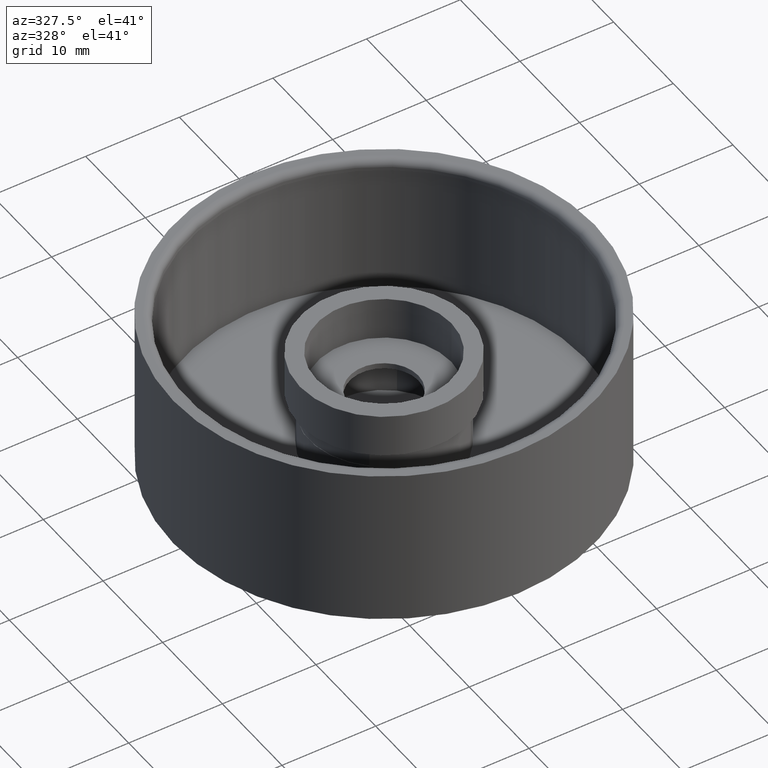
[diagram: clean part render]
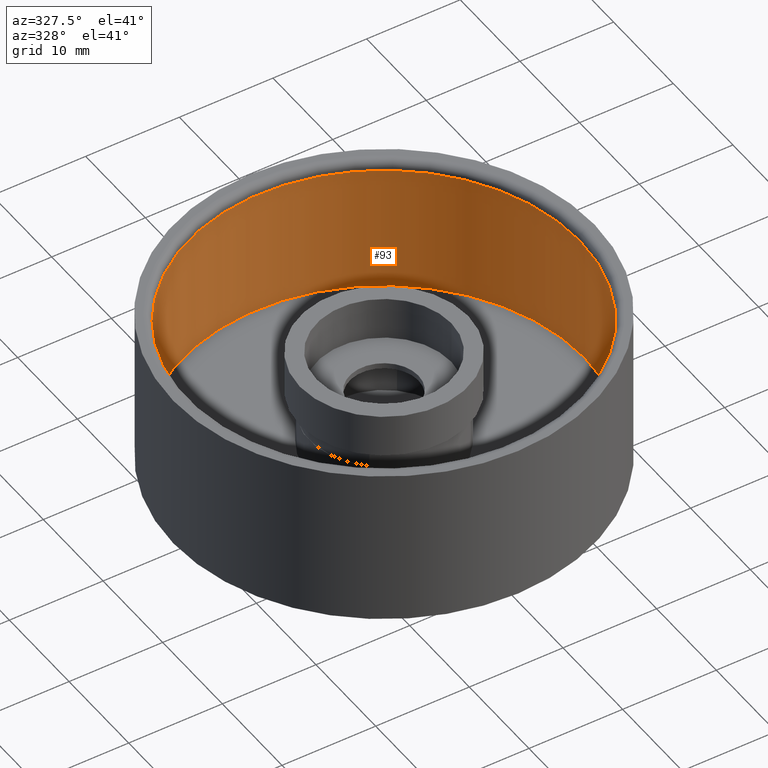
[diagram: same view with one face highlighted and labeled with its STEP entity id]
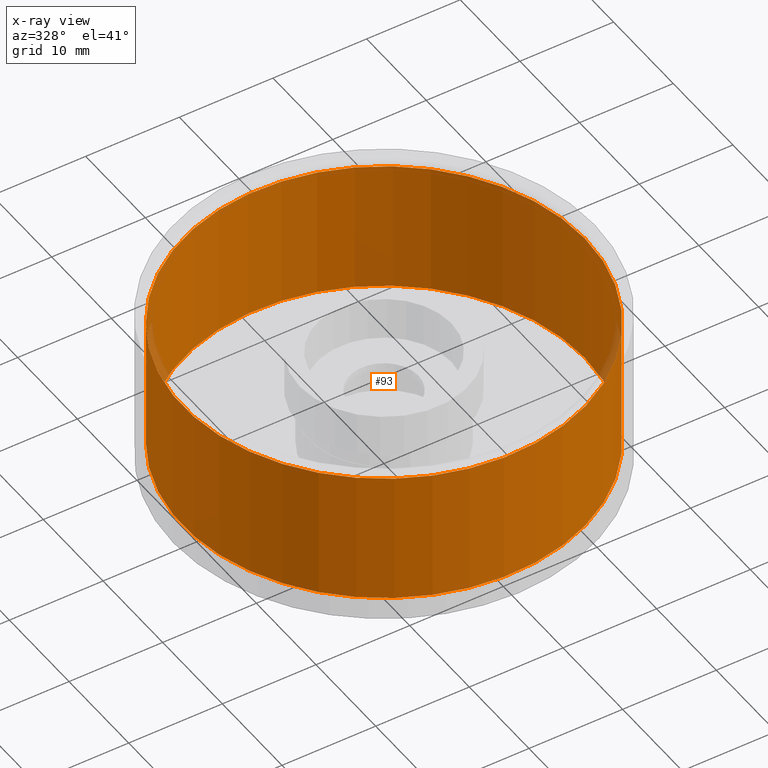
[diagram: x-ray of the same camera — body ghosted, the highlighted face saturated]
A machine part, auxiliary view. The second image highlights one B-rep face of the part: STEP entity #93.
The next image is the same camera in x-ray: the body ghosted, the highlighted face saturated — about 1% of this face is hidden behind the body in this view.
In plain terms, the highlighted cylindrical surface (bore or boss wall) has radius 21.4584 mm, axis along (0, 0, -1).
Its self-contained STEP definition (entity closure, byte-faithful):
#24 = ORIENTED_EDGE ( 'NONE', *, *, #233, .F. ) ;
#27 = ORIENTED_EDGE ( 'NONE', *, *, #121, .T. ) ;
#73 = DIRECTION ( 'NONE',  ( -1.000000000000000000, 0.000000000000000000, 0.000000000000000000 ) ) ;
#93 = ADVANCED_FACE ( 'NONE', ( #724, #445 ), #498, .F. ) ;
#121 = EDGE_CURVE ( 'NONE', #598, #598, #801, .T. ) ;
#138 = EDGE_LOOP ( 'NONE', ( #27 ) ) ;
#157 = DIRECTION ( 'NONE',  ( 1.000000000000000000, 0.000000000000000000, 0.000000000000000000 ) ) ;
#215 = DIRECTION ( 'NONE',  ( 1.000000000000000000, 0.000000000000000000, 0.000000000000000000 ) ) ;
#233 = EDGE_CURVE ( 'NONE', #799, #799, #894, .T. ) ;
#275 = AXIS2_PLACEMENT_3D ( 'NONE', #640, #574, #73 ) ;
#283 = DIRECTION ( 'NONE',  ( 0.000000000000000000, 0.000000000000000000, 1.000000000000000000 ) ) ;
#445 = FACE_OUTER_BOUND ( 'NONE', #727, .T. ) ;
#498 = CYLINDRICAL_SURFACE ( 'NONE', #275, 0.8448170911389231152 ) ;
#574 = DIRECTION ( 'NONE',  ( 0.000000000000000000, 0.000000000000000000, -1.000000000000000000 ) ) ;
#575 = AXIS2_PLACEMENT_3D ( 'NONE', #930, #283, #215 ) ;
#594 = CARTESIAN_POINT ( 'NONE',  ( 0.8448170911389231152, 0.000000000000000000, 0.06250000000000001388 ) ) ;
#598 = VERTEX_POINT ( 'NONE', #886 ) ;
#640 = CARTESIAN_POINT ( 'NONE',  ( 0.000000000000000000, 0.000000000000000000, 0.6230944899999999453 ) ) ;
#707 = AXIS2_PLACEMENT_3D ( 'NONE', #753, #823, #157 ) ;
#724 = FACE_OUTER_BOUND ( 'NONE', #138, .T. ) ;
#727 = EDGE_LOOP ( 'NONE', ( #24 ) ) ;
#753 = CARTESIAN_POINT ( 'NONE',  ( 0.000000000000000000, 0.000000000000000000, 0.06250000000000001388 ) ) ;
#799 = VERTEX_POINT ( 'NONE', #594 ) ;
#801 = CIRCLE ( 'NONE', #575, 0.8448170911389231152 ) ;
#823 = DIRECTION ( 'NONE',  ( 0.000000000000000000, 0.000000000000000000, 1.000000000000000000 ) ) ;
#886 = CARTESIAN_POINT ( 'NONE',  ( 0.8448170911389231152, 0.000000000000000000, 0.6230944899999999453 ) ) ;
#894 = CIRCLE ( 'NONE', #707, 0.8448170911389231152 ) ;
#930 = CARTESIAN_POINT ( 'NONE',  ( 0.000000000000000000, 0.000000000000000000, 0.6230944899999999453 ) ) ;